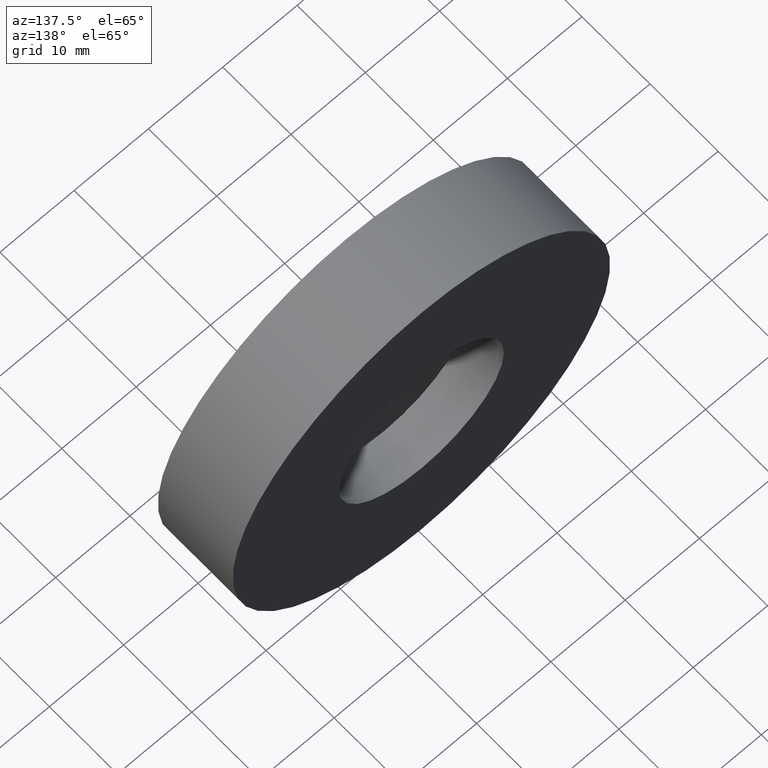
[diagram: clean part render]
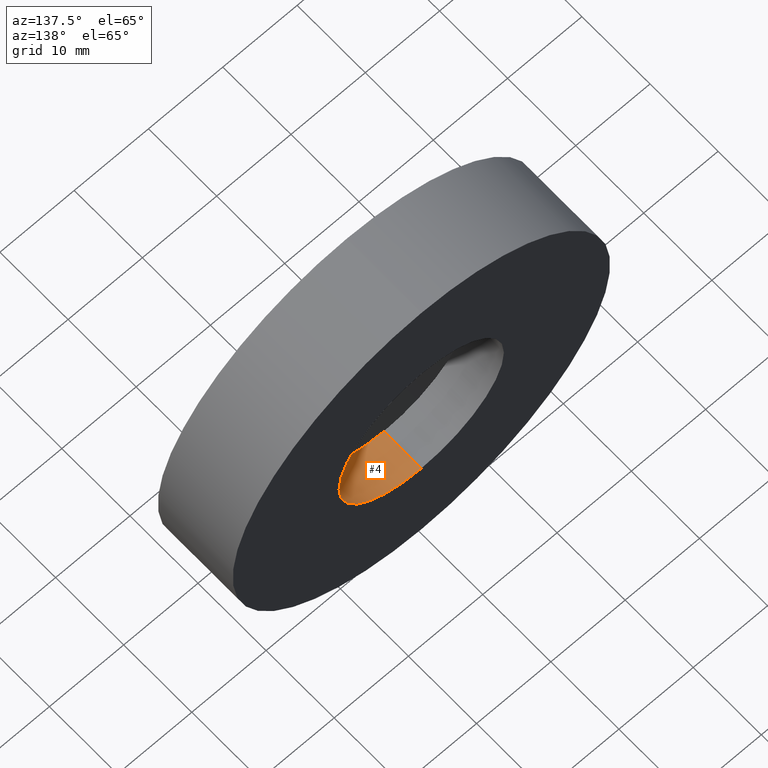
[diagram: same view with one face highlighted and labeled with its STEP entity id]
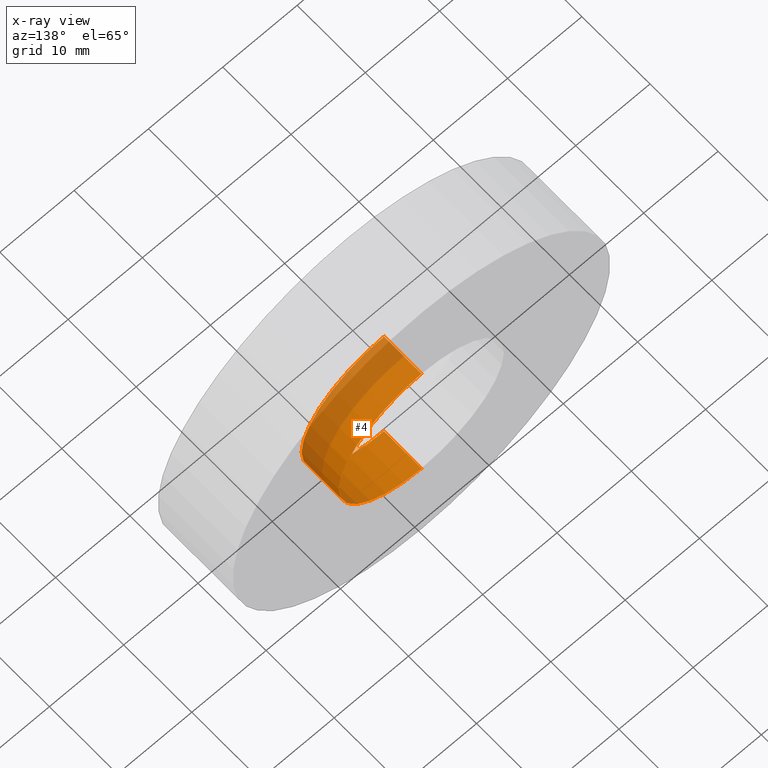
[diagram: x-ray of the same camera — body ghosted, the highlighted face saturated]
A machine part, auxiliary view. The second image highlights one B-rep face of the part: STEP entity #4.
The next image is the same camera in x-ray: the body ghosted, the highlighted face saturated — about 37% of this face is hidden behind the body in this view.
In plain terms, the highlighted cylindrical surface (partial cylindrical patch) has radius 11.1 mm, axis along (-0, 1, -0).
Its self-contained STEP definition (entity closure, byte-faithful):
#4 = ADVANCED_FACE ( 'NONE', ( #252 ), #121, .F. ) ;
#9 = LINE ( 'NONE', #397, #364 ) ;
#14 = CARTESIAN_POINT ( 'NONE',  ( 0.0000000000000000000, 60.02082041425541100, 0.0000000000000000000 ) ) ;
#16 = DIRECTION ( 'NONE',  ( -0.0000000000000000000, 1.000000000000000000, -0.0000000000000000000 ) ) ;
#21 = VERTEX_POINT ( 'NONE', #384 ) ;
#48 = DIRECTION ( 'NONE',  ( -0.0000000000000000000, 1.000000000000000000, -0.0000000000000000000 ) ) ;
#50 = CARTESIAN_POINT ( 'NONE',  ( 1.359357947053563100E-015, 10.99999999999999600, -11.10000000000000700 ) ) ;
#66 = EDGE_CURVE ( 'NONE', #192, #173, #9, .T. ) ;
#85 = DIRECTION ( 'NONE',  ( 0.0000000000000000000, 0.0000000000000000000, 1.000000000000000000 ) ) ;
#86 = VECTOR ( 'NONE', #242, 1000.000000000000000 ) ;
#91 = LINE ( 'NONE', #208, #86 ) ;
#95 = CARTESIAN_POINT ( 'NONE',  ( 0.0000000000000000000, 5.499999999999998200, 11.10000000000000500 ) ) ;
#110 = DIRECTION ( 'NONE',  ( 0.0000000000000000000, 0.0000000000000000000, 1.000000000000000000 ) ) ;
#115 = CARTESIAN_POINT ( 'NONE',  ( 0.0000000000000000000, 10.99999999999999600, 11.10000000000000700 ) ) ;
#121 = CYLINDRICAL_SURFACE ( 'NONE', #125, 11.10000000000000500 ) ;
#125 = AXIS2_PLACEMENT_3D ( 'NONE', #14, #16, #222 ) ;
#126 = EDGE_LOOP ( 'NONE', ( #296, #391, #210, #132 ) ) ;
#132 = ORIENTED_EDGE ( 'NONE', *, *, #165, .T. ) ;
#133 = EDGE_CURVE ( 'NONE', #192, #21, #350, .T. ) ;
#142 = DIRECTION ( 'NONE',  ( -0.0000000000000000000, 1.000000000000000000, -0.0000000000000000000 ) ) ;
#165 = EDGE_CURVE ( 'NONE', #173, #307, #416, .T. ) ;
#173 = VERTEX_POINT ( 'NONE', #115 ) ;
#179 = CARTESIAN_POINT ( 'NONE',  ( 0.0000000000000000000, 10.99999999999999600, 0.0000000000000000000 ) ) ;
#192 = VERTEX_POINT ( 'NONE', #95 ) ;
#200 = CARTESIAN_POINT ( 'NONE',  ( 0.0000000000000000000, 5.499999999999998200, 0.0000000000000000000 ) ) ;
#208 = CARTESIAN_POINT ( 'NONE',  ( 1.359357947053562700E-015, 60.02082041425541100, -11.10000000000000500 ) ) ;
#210 = ORIENTED_EDGE ( 'NONE', *, *, #66, .T. ) ;
#222 = DIRECTION ( 'NONE',  ( 0.0000000000000000000, 0.0000000000000000000, 1.000000000000000000 ) ) ;
#228 = AXIS2_PLACEMENT_3D ( 'NONE', #200, #142, #110 ) ;
#232 = DIRECTION ( 'NONE',  ( -0.0000000000000000000, 1.000000000000000000, -0.0000000000000000000 ) ) ;
#242 = DIRECTION ( 'NONE',  ( -0.0000000000000000000, 1.000000000000000000, -0.0000000000000000000 ) ) ;
#252 = FACE_OUTER_BOUND ( 'NONE', #126, .T. ) ;
#255 = AXIS2_PLACEMENT_3D ( 'NONE', #179, #48, #85 ) ;
#296 = ORIENTED_EDGE ( 'NONE', *, *, #346, .F. ) ;
#307 = VERTEX_POINT ( 'NONE', #50 ) ;
#346 = EDGE_CURVE ( 'NONE', #21, #307, #91, .T. ) ;
#350 = CIRCLE ( 'NONE', #228, 11.10000000000000500 ) ;
#364 = VECTOR ( 'NONE', #232, 1000.000000000000000 ) ;
#384 = CARTESIAN_POINT ( 'NONE',  ( 1.359357947053562700E-015, 5.499999999999998200, -11.10000000000000500 ) ) ;
#391 = ORIENTED_EDGE ( 'NONE', *, *, #133, .F. ) ;
#397 = CARTESIAN_POINT ( 'NONE',  ( 0.0000000000000000000, 60.02082041425541100, 11.10000000000000500 ) ) ;
#416 = CIRCLE ( 'NONE', #255, 11.10000000000000700 ) ;